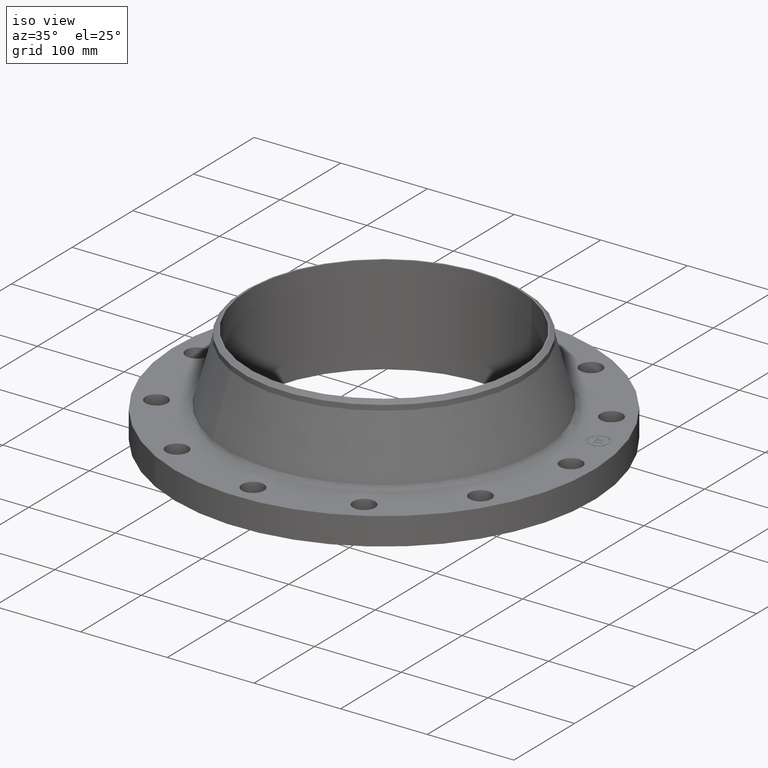
[diagram: clean part render]
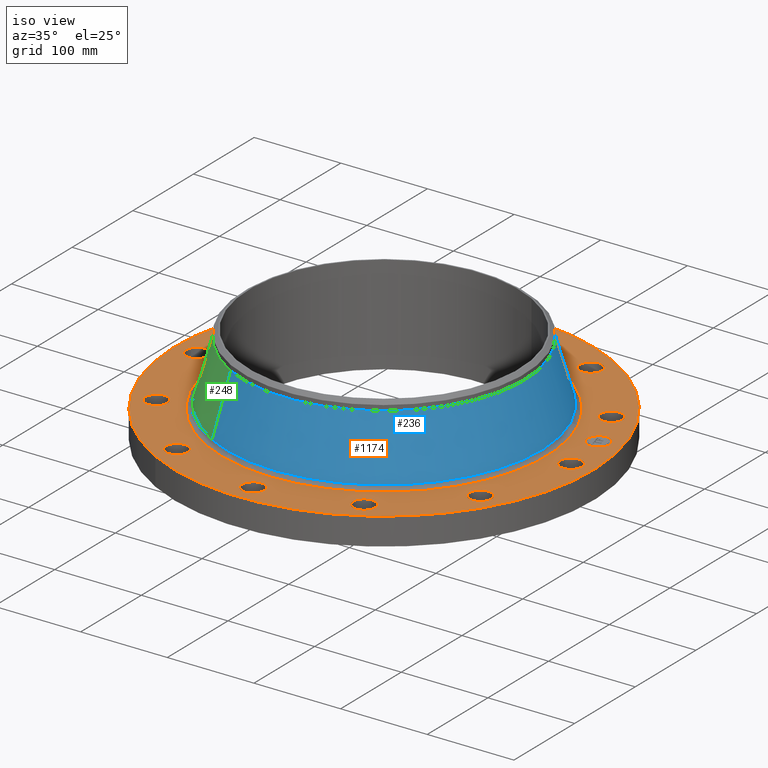
[diagram: same view with three faces highlighted in distinct colors, each labeled with its STEP entity id]
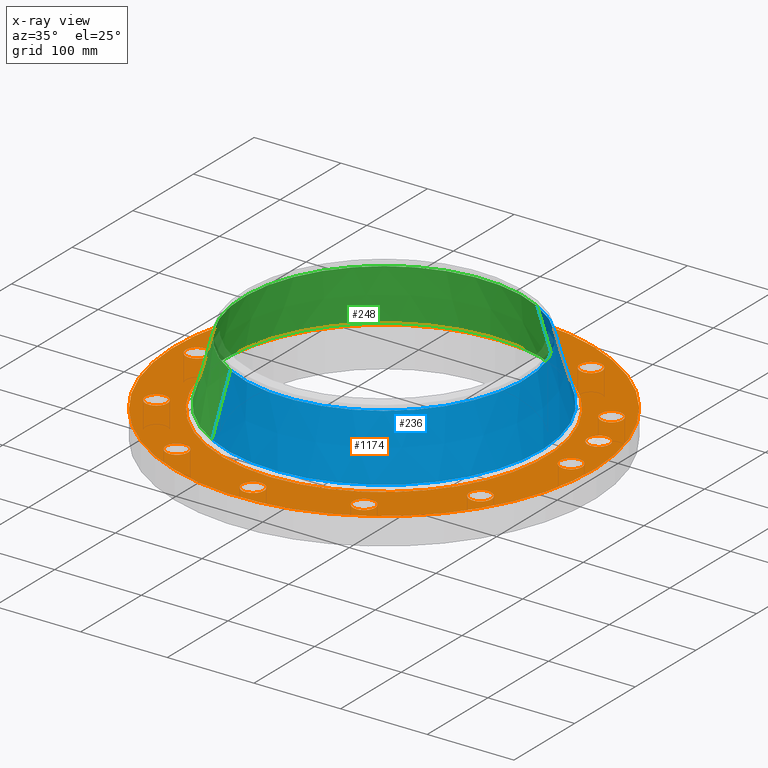
[diagram: x-ray of the same camera — body ghosted, the three highlighted faces saturated]
A machine part, iso view with three faces highlighted in distinct colors.
The next image is the same camera in x-ray (body ghosted, the three faces saturated) — at least one of them is partly hidden behind the body in this view.
Their STEP definitions:

[orange] entity #1174 — the highlighted planar face has unit normal (0, 0, -1).
#65=AXIS2_PLACEMENT_3D('Circle Axis2P3D',#63,#64,$) ;
#82=AXIS2_PLACEMENT_3D('Circle Axis2P3D',#80,#81,$) ;
#115=AXIS2_PLACEMENT_3D('Circle Axis2P3D',#113,#114,$) ;
#139=AXIS2_PLACEMENT_3D('Circle Axis2P3D',#137,#138,$) ;
#156=AXIS2_PLACEMENT_3D('Circle Axis2P3D',#154,#155,$) ;
#191=AXIS2_PLACEMENT_3D('Circle Axis2P3D',#189,#190,$) ;
#643=AXIS2_PLACEMENT_3D('Circle Axis2P3D',#641,#642,$) ;
#655=AXIS2_PLACEMENT_3D('Circle Axis2P3D',#653,#654,$) ;
#686=AXIS2_PLACEMENT_3D('Circle Axis2P3D',#684,#685,$) ;
#698=AXIS2_PLACEMENT_3D('Circle Axis2P3D',#696,#697,$) ;
#729=AXIS2_PLACEMENT_3D('Circle Axis2P3D',#727,#728,$) ;
#741=AXIS2_PLACEMENT_3D('Circle Axis2P3D',#739,#740,$) ;
#772=AXIS2_PLACEMENT_3D('Circle Axis2P3D',#770,#771,$) ;
#784=AXIS2_PLACEMENT_3D('Circle Axis2P3D',#782,#783,$) ;
#815=AXIS2_PLACEMENT_3D('Circle Axis2P3D',#813,#814,$) ;
#827=AXIS2_PLACEMENT_3D('Circle Axis2P3D',#825,#826,$) ;
#858=AXIS2_PLACEMENT_3D('Circle Axis2P3D',#856,#857,$) ;
#870=AXIS2_PLACEMENT_3D('Circle Axis2P3D',#868,#869,$) ;
#901=AXIS2_PLACEMENT_3D('Circle Axis2P3D',#899,#900,$) ;
#913=AXIS2_PLACEMENT_3D('Circle Axis2P3D',#911,#912,$) ;
#944=AXIS2_PLACEMENT_3D('Circle Axis2P3D',#942,#943,$) ;
#956=AXIS2_PLACEMENT_3D('Circle Axis2P3D',#954,#955,$) ;
#987=AXIS2_PLACEMENT_3D('Circle Axis2P3D',#985,#986,$) ;
#999=AXIS2_PLACEMENT_3D('Circle Axis2P3D',#997,#998,$) ;
#1030=AXIS2_PLACEMENT_3D('Circle Axis2P3D',#1028,#1029,$) ;
#1042=AXIS2_PLACEMENT_3D('Circle Axis2P3D',#1040,#1041,$) ;
#1073=AXIS2_PLACEMENT_3D('Circle Axis2P3D',#1071,#1072,$) ;
#1085=AXIS2_PLACEMENT_3D('Circle Axis2P3D',#1083,#1084,$) ;
#1098=AXIS2_PLACEMENT_3D('Plane Axis2P3D',#1095,#1096,#1097) ;
#1158=AXIS2_PLACEMENT_3D('Circle Axis2P3D',#1156,#1157,$) ;
#1167=AXIS2_PLACEMENT_3D('Circle Axis2P3D',#1165,#1166,$) ;
#46=CARTESIAN_POINT('Vertex',(8.06120871909,0.239712769303,1.25000000001)) ;
#60=CARTESIAN_POINT('Vertex',(8.93879128098,-0.239712769303,1.25000000001)) ;
#63=CARTESIAN_POINT('Axis2P3D Location',(8.50000000003,0.,1.25000000001)) ;
#80=CARTESIAN_POINT('Axis2P3D Location',(8.50000000003,0.,1.25000000001)) ;
#110=CARTESIAN_POINT('Vertex',(-4.55454261676,-8.33703433799,1.25000000001)) ;
#113=CARTESIAN_POINT('Axis2P3D Location',(0.,0.,1.25000000001)) ;
#117=CARTESIAN_POINT('Vertex',(4.55454261676,8.33703433799,1.25000000001)) ;
#137=CARTESIAN_POINT('Axis2P3D Location',(0.,0.,1.25000000001)) ;
#154=CARTESIAN_POINT('Axis2P3D Location',(0.,0.,1.25000000001)) ;
#158=CARTESIAN_POINT('Vertex',(3.53762825669,6.47558508786,1.25000000001)) ;
#160=CARTESIAN_POINT('Vertex',(-3.53762825669,-6.47558508786,1.25000000001)) ;
#189=CARTESIAN_POINT('Axis2P3D Location',(0.,0.,1.25000000001)) ;
#631=CARTESIAN_POINT('Vertex',(-7.10106792059,3.82300701172,1.25000000001)) ;
#638=CARTESIAN_POINT('Vertex',(-7.6213639438,4.67699298832,1.25000000001)) ;
#641=CARTESIAN_POINT('Axis2P3D Location',(-7.3612159322,4.25000000002,1.25000000001)) ;
#653=CARTESIAN_POINT('Axis2P3D Location',(-7.3612159322,4.25000000002,1.25000000001)) ;
#674=CARTESIAN_POINT('Vertex',(4.23820170737,-6.86135515129,1.25000000001)) ;
#681=CARTESIAN_POINT('Vertex',(4.26179829266,-7.86107671311,1.25000000001)) ;
#684=CARTESIAN_POINT('Axis2P3D Location',(4.25000000002,-7.3612159322,1.25000000001)) ;
#696=CARTESIAN_POINT('Axis2P3D Location',(4.25000000002,-7.3612159322,1.25000000001)) ;
#717=CARTESIAN_POINT('Vertex',(-4.23820170737,6.86135515129,1.25000000001)) ;
#724=CARTESIAN_POINT('Vertex',(-4.26179829266,7.86107671311,1.25000000001)) ;
#727=CARTESIAN_POINT('Axis2P3D Location',(-4.25000000002,7.3612159322,1.25000000001)) ;
#739=CARTESIAN_POINT('Axis2P3D Location',(-4.25000000002,7.3612159322,1.25000000001)) ;
#760=CARTESIAN_POINT('Vertex',(0.239712769303,-8.06120871909,1.25000000001)) ;
#767=CARTESIAN_POINT('Vertex',(-0.239712769303,-8.93879128098,1.25000000001)) ;
#770=CARTESIAN_POINT('Axis2P3D Location',(-5.98490048565E-016,-8.50000000003,1.25000000001)) ;
#782=CARTESIAN_POINT('Axis2P3D Location',(-5.98490048565E-016,-8.50000000003,1.25000000001)) ;
#803=CARTESIAN_POINT('Vertex',(-0.239712769303,8.06120871909,1.25000000001)) ;
#810=CARTESIAN_POINT('Vertex',(0.239712769303,8.93879128098,1.25000000001)) ;
#813=CARTESIAN_POINT('Axis2P3D Location',(-4.42459730714E-016,8.50000000003,1.25000000001)) ;
#825=CARTESIAN_POINT('Axis2P3D Location',(-4.42459730714E-016,8.50000000003,1.25000000001)) ;
#846=CARTESIAN_POINT('Vertex',(-3.82300701172,-7.10106792059,1.25000000001)) ;
#853=CARTESIAN_POINT('Vertex',(-4.67699298832,-7.6213639438,1.25000000001)) ;
#856=CARTESIAN_POINT('Axis2P3D Location',(-4.25000000002,-7.3612159322,1.25000000001)) ;
#868=CARTESIAN_POINT('Axis2P3D Location',(-4.25000000002,-7.3612159322,1.25000000001)) ;
#889=CARTESIAN_POINT('Vertex',(3.82300701172,7.10106792059,1.25000000001)) ;
#896=CARTESIAN_POINT('Vertex',(4.67699298832,7.6213639438,1.25000000001)) ;
#899=CARTESIAN_POINT('Axis2P3D Location',(4.25000000002,7.3612159322,1.25000000001)) ;
#911=CARTESIAN_POINT('Axis2P3D Location',(4.25000000002,7.3612159322,1.25000000001)) ;
#932=CARTESIAN_POINT('Vertex',(-6.86135515129,-4.23820170737,1.25000000001)) ;
#939=CARTESIAN_POINT('Vertex',(-7.86107671311,-4.26179829266,1.25000000001)) ;
#942=CARTESIAN_POINT('Axis2P3D Location',(-7.3612159322,-4.25000000002,1.25000000001)) ;
#954=CARTESIAN_POINT('Axis2P3D Location',(-7.3612159322,-4.25000000002,1.25000000001)) ;
#975=CARTESIAN_POINT('Vertex',(6.86135515129,4.23820170737,1.25000000001)) ;
#982=CARTESIAN_POINT('Vertex',(7.86107671311,4.26179829266,1.25000000001)) ;
#985=CARTESIAN_POINT('Axis2P3D Location',(7.3612159322,4.25000000002,1.25000000001)) ;
#997=CARTESIAN_POINT('Axis2P3D Location',(7.3612159322,4.25000000002,1.25000000001)) ;
#1018=CARTESIAN_POINT('Vertex',(-8.06120871909,-0.239712769303,1.25000000001)) ;
#1025=CARTESIAN_POINT('Vertex',(-8.93879128098,0.239712769303,1.25000000001)) ;
#1028=CARTESIAN_POINT('Axis2P3D Location',(-8.50000000003,-1.04094977928E-015,1.25000000001)) ;
#1040=CARTESIAN_POINT('Axis2P3D Location',(-8.50000000003,-1.04094977928E-015,1.25000000001)) ;
#1061=CARTESIAN_POINT('Vertex',(7.10106792059,-3.82300701172,1.25000000001)) ;
#1068=CARTESIAN_POINT('Vertex',(7.6213639438,-4.67699298832,1.25000000001)) ;
#1071=CARTESIAN_POINT('Axis2P3D Location',(7.3612159322,-4.25000000002,1.25000000001)) ;
#1083=CARTESIAN_POINT('Axis2P3D Location',(7.3612159322,-4.25000000002,1.25000000001)) ;
#1095=CARTESIAN_POINT('Axis2P3D Location',(0.,9.50000000004,1.25000000001)) ;
#1156=CARTESIAN_POINT('Axis2P3D Location',(8.21036952349,2.19996188338,1.25000000001)) ;
#1160=CARTESIAN_POINT('Vertex',(8.08096029755,2.68292368957,1.25000000001)) ;
#1162=CARTESIAN_POINT('Vertex',(8.33977874943,1.71700007719,1.25000000001)) ;
#1165=CARTESIAN_POINT('Axis2P3D Location',(8.21036952349,2.19996188338,1.25000000001)) ;
#64=DIRECTION('Axis2P3D Direction',(0.,-0.,-0.0393700787402)) ;
#81=DIRECTION('Axis2P3D Direction',(0.,-0.,-0.0393700787402)) ;
#114=DIRECTION('Axis2P3D Direction',(0.,0.,-0.0393700787402)) ;
#138=DIRECTION('Axis2P3D Direction',(0.,0.,-0.0393700787402)) ;
#155=DIRECTION('Axis2P3D Direction',(0.,0.,-0.0393700787402)) ;
#190=DIRECTION('Axis2P3D Direction',(0.,0.,-0.0393700787402)) ;
#642=DIRECTION('Axis2P3D Direction',(0.,0.,-0.0393700787402)) ;
#654=DIRECTION('Axis2P3D Direction',(0.,0.,-0.0393700787402)) ;
#685=DIRECTION('Axis2P3D Direction',(0.,-0.,-0.0393700787402)) ;
#697=DIRECTION('Axis2P3D Direction',(0.,-0.,-0.0393700787402)) ;
#728=DIRECTION('Axis2P3D Direction',(0.,0.,-0.0393700787402)) ;
#740=DIRECTION('Axis2P3D Direction',(0.,0.,-0.0393700787402)) ;
#771=DIRECTION('Axis2P3D Direction',(0.,-0.,-0.0393700787402)) ;
#783=DIRECTION('Axis2P3D Direction',(0.,-0.,-0.0393700787402)) ;
#814=DIRECTION('Axis2P3D Direction',(0.,0.,-0.0393700787402)) ;
#826=DIRECTION('Axis2P3D Direction',(0.,0.,-0.0393700787402)) ;
#857=DIRECTION('Axis2P3D Direction',(-0.,0.,-0.0393700787402)) ;
#869=DIRECTION('Axis2P3D Direction',(-0.,0.,-0.0393700787402)) ;
#900=DIRECTION('Axis2P3D Direction',(0.,0.,-0.0393700787402)) ;
#912=DIRECTION('Axis2P3D Direction',(0.,0.,-0.0393700787402)) ;
#943=DIRECTION('Axis2P3D Direction',(-0.,0.,-0.0393700787402)) ;
#955=DIRECTION('Axis2P3D Direction',(-0.,0.,-0.0393700787402)) ;
#986=DIRECTION('Axis2P3D Direction',(0.,0.,-0.0393700787402)) ;
#998=DIRECTION('Axis2P3D Direction',(0.,0.,-0.0393700787402)) ;
#1029=DIRECTION('Axis2P3D Direction',(-0.,0.,-0.0393700787402)) ;
#1041=DIRECTION('Axis2P3D Direction',(-0.,0.,-0.0393700787402)) ;
#1072=DIRECTION('Axis2P3D Direction',(0.,-0.,-0.0393700787402)) ;
#1084=DIRECTION('Axis2P3D Direction',(0.,-0.,-0.0393700787402)) ;
#1096=DIRECTION('Axis2P3D Direction',(0.,0.,-0.0393700787402)) ;
#1097=DIRECTION('Axis2P3D XDirection',(0.0393700787402,0.,0.)) ;
#1157=DIRECTION('Axis2P3D Direction',(0.,0.,-0.0393700787402)) ;
#1166=DIRECTION('Axis2P3D Direction',(0.,0.,-0.0393700787402)) ;
#1101=ORIENTED_EDGE('',*,*,#141,.F.) ;
#1102=ORIENTED_EDGE('',*,*,#119,.F.) ;
#1105=ORIENTED_EDGE('',*,*,#67,.T.) ;
#1106=ORIENTED_EDGE('',*,*,#84,.T.) ;
#1109=ORIENTED_EDGE('',*,*,#193,.T.) ;
#1110=ORIENTED_EDGE('',*,*,#162,.T.) ;
#1113=ORIENTED_EDGE('',*,*,#1087,.T.) ;
#1114=ORIENTED_EDGE('',*,*,#1075,.T.) ;
#1117=ORIENTED_EDGE('',*,*,#700,.T.) ;
#1118=ORIENTED_EDGE('',*,*,#688,.T.) ;
#1121=ORIENTED_EDGE('',*,*,#786,.T.) ;
#1122=ORIENTED_EDGE('',*,*,#774,.T.) ;
#1125=ORIENTED_EDGE('',*,*,#872,.T.) ;
#1126=ORIENTED_EDGE('',*,*,#860,.T.) ;
#1129=ORIENTED_EDGE('',*,*,#958,.T.) ;
#1130=ORIENTED_EDGE('',*,*,#946,.T.) ;
#1133=ORIENTED_EDGE('',*,*,#1044,.T.) ;
#1134=ORIENTED_EDGE('',*,*,#1032,.T.) ;
#1137=ORIENTED_EDGE('',*,*,#657,.T.) ;
#1138=ORIENTED_EDGE('',*,*,#645,.T.) ;
#1141=ORIENTED_EDGE('',*,*,#743,.T.) ;
#1142=ORIENTED_EDGE('',*,*,#731,.T.) ;
#1145=ORIENTED_EDGE('',*,*,#829,.T.) ;
#1146=ORIENTED_EDGE('',*,*,#817,.T.) ;
#1149=ORIENTED_EDGE('',*,*,#915,.T.) ;
#1150=ORIENTED_EDGE('',*,*,#903,.T.) ;
#1153=ORIENTED_EDGE('',*,*,#1001,.T.) ;
#1154=ORIENTED_EDGE('',*,*,#989,.T.) ;
#1171=ORIENTED_EDGE('',*,*,#1164,.T.) ;
#1172=ORIENTED_EDGE('',*,*,#1169,.T.) ;
#1107=FACE_BOUND('',#1104,.T.) ;
#1111=FACE_BOUND('',#1108,.T.) ;
#1115=FACE_BOUND('',#1112,.T.) ;
#1119=FACE_BOUND('',#1116,.T.) ;
#1123=FACE_BOUND('',#1120,.T.) ;
#1127=FACE_BOUND('',#1124,.T.) ;
#1131=FACE_BOUND('',#1128,.T.) ;
#1135=FACE_BOUND('',#1132,.T.) ;
#1139=FACE_BOUND('',#1136,.T.) ;
#1143=FACE_BOUND('',#1140,.T.) ;
#1147=FACE_BOUND('',#1144,.T.) ;
#1151=FACE_BOUND('',#1148,.T.) ;
#1155=FACE_BOUND('',#1152,.T.) ;
#1173=FACE_BOUND('',#1170,.T.) ;
#1174=ADVANCED_FACE('PartBody',(#1103,#1107,#1111,#1115,#1119,#1123,#1127,#1131,#1135,#1139,#1143,#1147,#1151,#1155,#1173),#1099,.F.) ;
#66=CIRCLE('generated circle',#65,0.500000000002) ;
#83=CIRCLE('generated circle',#82,0.500000000002) ;
#116=CIRCLE('generated circle',#115,9.50000000004) ;
#140=CIRCLE('generated circle',#139,9.50000000004) ;
#157=CIRCLE('generated circle',#156,7.37888988349) ;
#192=CIRCLE('generated circle',#191,7.37888988349) ;
#644=CIRCLE('generated circle',#643,0.500000000002) ;
#656=CIRCLE('generated circle',#655,0.500000000002) ;
#687=CIRCLE('generated circle',#686,0.500000000002) ;
#699=CIRCLE('generated circle',#698,0.500000000002) ;
#730=CIRCLE('generated circle',#729,0.500000000002) ;
#742=CIRCLE('generated circle',#741,0.500000000002) ;
#773=CIRCLE('generated circle',#772,0.500000000002) ;
#785=CIRCLE('generated circle',#784,0.500000000002) ;
#816=CIRCLE('generated circle',#815,0.500000000002) ;
#828=CIRCLE('generated circle',#827,0.500000000002) ;
#859=CIRCLE('generated circle',#858,0.500000000002) ;
#871=CIRCLE('generated circle',#870,0.500000000002) ;
#902=CIRCLE('generated circle',#901,0.500000000002) ;
#914=CIRCLE('generated circle',#913,0.500000000002) ;
#945=CIRCLE('generated circle',#944,0.500000000002) ;
#957=CIRCLE('generated circle',#956,0.500000000002) ;
#988=CIRCLE('generated circle',#987,0.500000000002) ;
#1000=CIRCLE('generated circle',#999,0.500000000002) ;
#1031=CIRCLE('generated circle',#1030,0.500000000002) ;
#1043=CIRCLE('generated circle',#1042,0.500000000002) ;
#1074=CIRCLE('generated circle',#1073,0.500000000002) ;
#1086=CIRCLE('generated circle',#1085,0.500000000002) ;
#1159=CIRCLE('generated circle',#1158,0.499998853999) ;
#1168=CIRCLE('generated circle',#1167,0.499998853999) ;
#67=EDGE_CURVE('',#47,#61,#66,.T.) ;
#84=EDGE_CURVE('',#61,#47,#83,.T.) ;
#119=EDGE_CURVE('',#111,#118,#116,.T.) ;
#141=EDGE_CURVE('',#118,#111,#140,.T.) ;
#162=EDGE_CURVE('',#159,#161,#157,.T.) ;
#193=EDGE_CURVE('',#161,#159,#192,.T.) ;
#645=EDGE_CURVE('',#632,#639,#644,.T.) ;
#657=EDGE_CURVE('',#639,#632,#656,.T.) ;
#688=EDGE_CURVE('',#675,#682,#687,.T.) ;
#700=EDGE_CURVE('',#682,#675,#699,.T.) ;
#731=EDGE_CURVE('',#718,#725,#730,.T.) ;
#743=EDGE_CURVE('',#725,#718,#742,.T.) ;
#774=EDGE_CURVE('',#761,#768,#773,.T.) ;
#786=EDGE_CURVE('',#768,#761,#785,.T.) ;
#817=EDGE_CURVE('',#804,#811,#816,.T.) ;
#829=EDGE_CURVE('',#811,#804,#828,.T.) ;
#860=EDGE_CURVE('',#847,#854,#859,.T.) ;
#872=EDGE_CURVE('',#854,#847,#871,.T.) ;
#903=EDGE_CURVE('',#890,#897,#902,.T.) ;
#915=EDGE_CURVE('',#897,#890,#914,.T.) ;
#946=EDGE_CURVE('',#933,#940,#945,.T.) ;
#958=EDGE_CURVE('',#940,#933,#957,.T.) ;
#989=EDGE_CURVE('',#976,#983,#988,.T.) ;
#1001=EDGE_CURVE('',#983,#976,#1000,.T.) ;
#1032=EDGE_CURVE('',#1019,#1026,#1031,.T.) ;
#1044=EDGE_CURVE('',#1026,#1019,#1043,.T.) ;
#1075=EDGE_CURVE('',#1062,#1069,#1074,.T.) ;
#1087=EDGE_CURVE('',#1069,#1062,#1086,.T.) ;
#1164=EDGE_CURVE('',#1161,#1163,#1159,.T.) ;
#1169=EDGE_CURVE('',#1163,#1161,#1168,.T.) ;
#1100=EDGE_LOOP('',(#1101,#1102)) ;
#1104=EDGE_LOOP('',(#1105,#1106)) ;
#1108=EDGE_LOOP('',(#1109,#1110)) ;
#1112=EDGE_LOOP('',(#1113,#1114)) ;
#1116=EDGE_LOOP('',(#1117,#1118)) ;
#1120=EDGE_LOOP('',(#1121,#1122)) ;
#1124=EDGE_LOOP('',(#1125,#1126)) ;
#1128=EDGE_LOOP('',(#1129,#1130)) ;
#1132=EDGE_LOOP('',(#1133,#1134)) ;
#1136=EDGE_LOOP('',(#1137,#1138)) ;
#1140=EDGE_LOOP('',(#1141,#1142)) ;
#1144=EDGE_LOOP('',(#1145,#1146)) ;
#1148=EDGE_LOOP('',(#1149,#1150)) ;
#1152=EDGE_LOOP('',(#1153,#1154)) ;
#1170=EDGE_LOOP('',(#1171,#1172)) ;
#1103=FACE_OUTER_BOUND('',#1100,.T.) ;
#1099=PLANE('',#1098) ;
#47=VERTEX_POINT('',#46) ;
#61=VERTEX_POINT('',#60) ;
#111=VERTEX_POINT('',#110) ;
#118=VERTEX_POINT('',#117) ;
#159=VERTEX_POINT('',#158) ;
#161=VERTEX_POINT('',#160) ;
#632=VERTEX_POINT('',#631) ;
#639=VERTEX_POINT('',#638) ;
#675=VERTEX_POINT('',#674) ;
#682=VERTEX_POINT('',#681) ;
#718=VERTEX_POINT('',#717) ;
#725=VERTEX_POINT('',#724) ;
#761=VERTEX_POINT('',#760) ;
#768=VERTEX_POINT('',#767) ;
#804=VERTEX_POINT('',#803) ;
#811=VERTEX_POINT('',#810) ;
#847=VERTEX_POINT('',#846) ;
#854=VERTEX_POINT('',#853) ;
#890=VERTEX_POINT('',#889) ;
#897=VERTEX_POINT('',#896) ;
#933=VERTEX_POINT('',#932) ;
#940=VERTEX_POINT('',#939) ;
#976=VERTEX_POINT('',#975) ;
#983=VERTEX_POINT('',#982) ;
#1019=VERTEX_POINT('',#1018) ;
#1026=VERTEX_POINT('',#1025) ;
#1062=VERTEX_POINT('',#1061) ;
#1069=VERTEX_POINT('',#1068) ;
#1161=VERTEX_POINT('',#1160) ;
#1163=VERTEX_POINT('',#1162) ;

[blue] entity #236 — the highlighted conical surface has half-angle 15.854 deg.
#172=AXIS2_PLACEMENT_3D('Circle Axis2P3D',#170,#171,$) ;
#209=AXIS2_PLACEMENT_3D('Cone Axis2P3D',#206,#207,#208) ;
#220=AXIS2_PLACEMENT_3D('Circle Axis2P3D',#218,#219,$) ;
#167=CARTESIAN_POINT('Vertex',(3.42233084563,6.26453459257,1.43170508482)) ;
#170=CARTESIAN_POINT('Axis2P3D Location',(0.,0.,1.43170508482)) ;
#174=CARTESIAN_POINT('Vertex',(-3.42233084563,-6.26453459257,1.43170508482)) ;
#206=CARTESIAN_POINT('Axis2P3D Location',(0.,0.,4.11990571733)) ;
#211=CARTESIAN_POINT('Line Origine',(3.23933432712,5.92956171232,2.77580540107)) ;
#215=CARTESIAN_POINT('Vertex',(3.05633780861,5.59458883207,4.11990571733)) ;
#218=CARTESIAN_POINT('Axis2P3D Location',(0.,0.,4.11990571733)) ;
#222=CARTESIAN_POINT('Vertex',(-3.05633780861,-5.59458883207,4.11990571733)) ;
#225=CARTESIAN_POINT('Line Origine',(-3.23933432712,-5.92956171232,2.77580540107)) ;
#171=DIRECTION('Axis2P3D Direction',(0.,0.,-0.0393700787402)) ;
#207=DIRECTION('Axis2P3D Direction',(0.,0.,-0.0393700787402)) ;
#208=DIRECTION('Axis2P3D XDirection',(-0.0188750212049,-0.0345504945626,0.)) ;
#212=DIRECTION('Vector Direction',(0.0051562718894,0.00943849238336,-0.0378725602744)) ;
#219=DIRECTION('Axis2P3D Direction',(0.,0.,-0.0393700787402)) ;
#226=DIRECTION('Vector Direction',(-0.0051562718894,-0.00943849238336,-0.0378725602744)) ;
#213=VECTOR('Line Direction',#212,0.0393700787402) ;
#227=VECTOR('Line Direction',#226,0.0393700787402) ;
#231=ORIENTED_EDGE('',*,*,#176,.F.) ;
#232=ORIENTED_EDGE('',*,*,#217,.T.) ;
#233=ORIENTED_EDGE('',*,*,#224,.T.) ;
#234=ORIENTED_EDGE('',*,*,#229,.F.) ;
#236=ADVANCED_FACE('PartBody',(#235),#210,.T.) ;
#173=CIRCLE('generated circle',#172,7.13839912575) ;
#221=CIRCLE('generated circle',#220,6.37500000003) ;
#210=CONICAL_SURFACE('Cone',#209,6.37500000003,0.276696875275) ;
#176=EDGE_CURVE('',#168,#175,#173,.T.) ;
#217=EDGE_CURVE('',#168,#216,#214,.F.) ;
#224=EDGE_CURVE('',#216,#223,#221,.T.) ;
#229=EDGE_CURVE('',#175,#223,#228,.F.) ;
#230=EDGE_LOOP('',(#231,#232,#233,#234)) ;
#235=FACE_OUTER_BOUND('',#230,.T.) ;
#214=LINE('Line',#211,#213) ;
#228=LINE('Line',#225,#227) ;
#168=VERTEX_POINT('',#167) ;
#175=VERTEX_POINT('',#174) ;
#216=VERTEX_POINT('',#215) ;
#223=VERTEX_POINT('',#222) ;

[green] entity #248 — the highlighted conical surface has half-angle 15.854 deg.
#196=AXIS2_PLACEMENT_3D('Circle Axis2P3D',#194,#195,$) ;
#209=AXIS2_PLACEMENT_3D('Cone Axis2P3D',#206,#207,#208) ;
#239=AXIS2_PLACEMENT_3D('Circle Axis2P3D',#237,#238,$) ;
#167=CARTESIAN_POINT('Vertex',(3.42233084563,6.26453459257,1.43170508482)) ;
#174=CARTESIAN_POINT('Vertex',(-3.42233084563,-6.26453459257,1.43170508482)) ;
#194=CARTESIAN_POINT('Axis2P3D Location',(0.,0.,1.43170508482)) ;
#206=CARTESIAN_POINT('Axis2P3D Location',(0.,0.,4.11990571733)) ;
#211=CARTESIAN_POINT('Line Origine',(3.23933432712,5.92956171232,2.77580540107)) ;
#215=CARTESIAN_POINT('Vertex',(3.05633780861,5.59458883207,4.11990571733)) ;
#222=CARTESIAN_POINT('Vertex',(-3.05633780861,-5.59458883207,4.11990571733)) ;
#225=CARTESIAN_POINT('Line Origine',(-3.23933432712,-5.92956171232,2.77580540107)) ;
#237=CARTESIAN_POINT('Axis2P3D Location',(0.,0.,4.11990571733)) ;
#195=DIRECTION('Axis2P3D Direction',(0.,0.,-0.0393700787402)) ;
#207=DIRECTION('Axis2P3D Direction',(0.,0.,-0.0393700787402)) ;
#208=DIRECTION('Axis2P3D XDirection',(-0.0188750212049,-0.0345504945626,0.)) ;
#212=DIRECTION('Vector Direction',(0.0051562718894,0.00943849238336,-0.0378725602744)) ;
#226=DIRECTION('Vector Direction',(-0.0051562718894,-0.00943849238336,-0.0378725602744)) ;
#238=DIRECTION('Axis2P3D Direction',(0.,0.,-0.0393700787402)) ;
#213=VECTOR('Line Direction',#212,0.0393700787402) ;
#227=VECTOR('Line Direction',#226,0.0393700787402) ;
#243=ORIENTED_EDGE('',*,*,#198,.F.) ;
#244=ORIENTED_EDGE('',*,*,#229,.T.) ;
#245=ORIENTED_EDGE('',*,*,#241,.T.) ;
#246=ORIENTED_EDGE('',*,*,#217,.F.) ;
#248=ADVANCED_FACE('PartBody',(#247),#210,.T.) ;
#197=CIRCLE('generated circle',#196,7.13839912575) ;
#240=CIRCLE('generated circle',#239,6.37500000003) ;
#210=CONICAL_SURFACE('Cone',#209,6.37500000003,0.276696875275) ;
#198=EDGE_CURVE('',#175,#168,#197,.T.) ;
#217=EDGE_CURVE('',#168,#216,#214,.F.) ;
#229=EDGE_CURVE('',#175,#223,#228,.F.) ;
#241=EDGE_CURVE('',#223,#216,#240,.T.) ;
#242=EDGE_LOOP('',(#243,#244,#245,#246)) ;
#247=FACE_OUTER_BOUND('',#242,.T.) ;
#214=LINE('Line',#211,#213) ;
#228=LINE('Line',#225,#227) ;
#168=VERTEX_POINT('',#167) ;
#175=VERTEX_POINT('',#174) ;
#216=VERTEX_POINT('',#215) ;
#223=VERTEX_POINT('',#222) ;